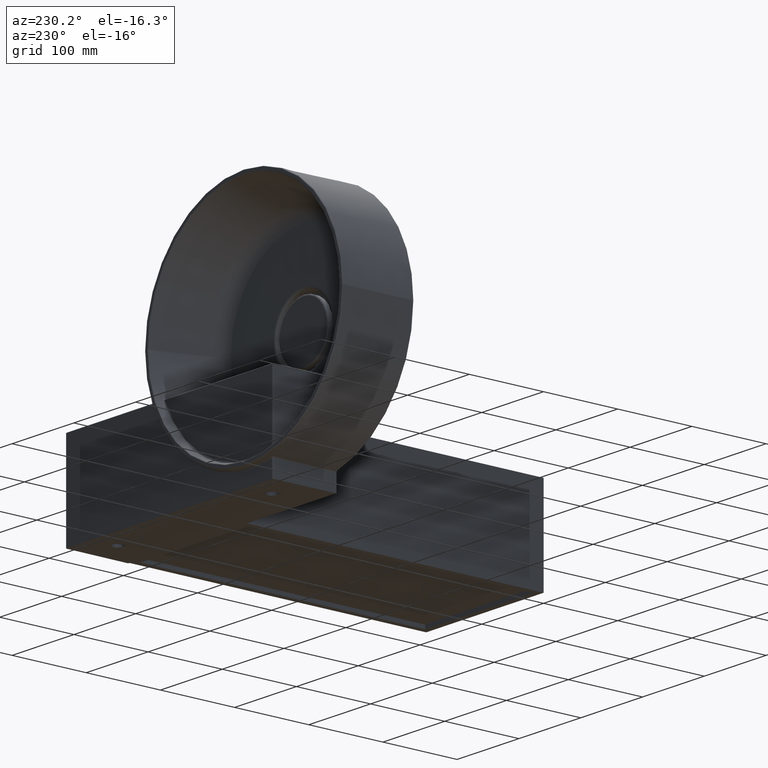
[diagram: clean part render]
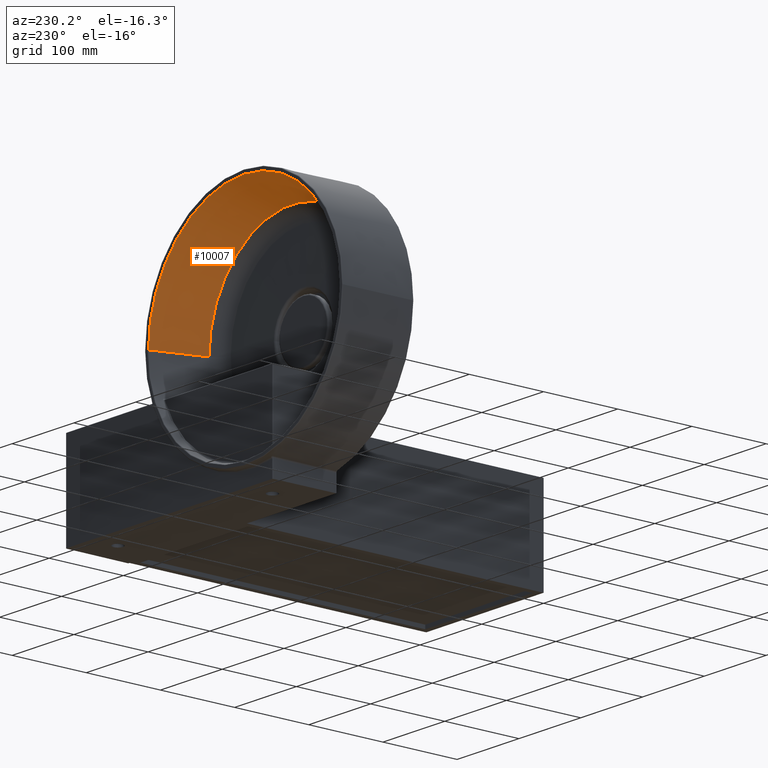
[diagram: same view with one face highlighted and labeled with its STEP entity id]
A machine part, auxiliary view. The second image highlights one B-rep face of the part: STEP entity #10007.
In plain terms, the highlighted conical surface has half-angle 17.5 deg.
Its self-contained STEP definition (entity closure, byte-faithful):
#420 = VECTOR ( 'NONE', #804, 1000.000000000000227 ) ;
#492 = ORIENTED_EDGE ( 'NONE', *, *, #3143, .T. ) ;
#804 = DIRECTION ( 'NONE',  ( 0.3007057995042739518, 0.9537169507482265995, 3.682583948479549965E-17 ) ) ;
#898 = CARTESIAN_POINT ( 'NONE',  ( 25.69210793720474939, 429.7999743637435586, 56.00000000000000711 ) ) ;
#968 = LINE ( 'NONE', #898, #420 ) ;
#1030 = VERTEX_POINT ( 'NONE', #4417 ) ;
#1236 = VERTEX_POINT ( 'NONE', #9693 ) ;
#2020 = VECTOR ( 'NONE', #7519, 1000.000000000000000 ) ;
#2310 = EDGE_CURVE ( 'NONE', #6648, #1030, #968, .T. ) ;
#2874 = EDGE_CURVE ( 'NONE', #1236, #6648, #10418, .T. ) ;
#3143 = EDGE_CURVE ( 'NONE', #1236, #6069, #8004, .T. ) ;
#3184 = EDGE_CURVE ( 'NONE', #6069, #1030, #10428, .T. ) ;
#3443 = CARTESIAN_POINT ( 'NONE',  ( 25.69210793720474939, 429.7999743637435586, 56.00000000000000711 ) ) ;
#3656 = CONICAL_SURFACE ( 'NONE', #10085, 134.4338916994192061, 0.3054326190990086509 ) ;
#3870 = CARTESIAN_POINT ( 'NONE',  ( -108.7417837622144674, 429.7999743637435586, 55.99999999999999289 ) ) ;
#3949 = AXIS2_PLACEMENT_3D ( 'NONE', #3870, #4023, #4058 ) ;
#3960 = AXIS2_PLACEMENT_3D ( 'NONE', #6968, #6954, #7040 ) ;
#4023 = DIRECTION ( 'NONE',  ( -1.214623636765614367E-16, 1.000000000000000000, -0.0000000000000000000 ) ) ;
#4058 = DIRECTION ( 'NONE',  ( -1.000000000000000000, 0.0000000000000000000, 0.0000000000000000000 ) ) ;
#4417 = CARTESIAN_POINT ( 'NONE',  ( 46.02907891082985969, 494.3006057995042397, 56.00000000000001421 ) ) ;
#4949 = DIRECTION ( 'NONE',  ( -1.000000000000000000, 0.0000000000000000000, 0.0000000000000000000 ) ) ;
#4964 = DIRECTION ( 'NONE',  ( -1.214623636765614367E-16, 1.000000000000000000, -0.0000000000000000000 ) ) ;
#5007 = CARTESIAN_POINT ( 'NONE',  ( -108.7417837622144674, 429.7999743637435586, 55.99999999999999289 ) ) ;
#5024 = FACE_OUTER_BOUND ( 'NONE', #5076, .T. ) ;
#5076 = EDGE_LOOP ( 'NONE', ( #8815, #5407, #492, #10495 ) ) ;
#5407 = ORIENTED_EDGE ( 'NONE', *, *, #2874, .F. ) ;
#6069 = VERTEX_POINT ( 'NONE', #8039 ) ;
#6648 = VERTEX_POINT ( 'NONE', #3443 ) ;
#6954 = DIRECTION ( 'NONE',  ( -1.214623636765614367E-16, 1.000000000000000000, -0.0000000000000000000 ) ) ;
#6968 = CARTESIAN_POINT ( 'NONE',  ( -108.7417837622144674, 494.3006057995042397, 55.99999999999999289 ) ) ;
#7040 = DIRECTION ( 'NONE',  ( -1.000000000000000000, 0.0000000000000000000, 0.0000000000000000000 ) ) ;
#7506 = CARTESIAN_POINT ( 'NONE',  ( -243.1756754616336877, 429.7999743637435586, 55.99999999999999289 ) ) ;
#7519 = DIRECTION ( 'NONE',  ( -0.3007057995042741738, 0.9537169507482265995, 0.0000000000000000000 ) ) ;
#8004 = LINE ( 'NONE', #7506, #2020 ) ;
#8039 = CARTESIAN_POINT ( 'NONE',  ( -263.5126464352587732, 494.3006057995042397, 55.99999999999999289 ) ) ;
#8815 = ORIENTED_EDGE ( 'NONE', *, *, #2310, .F. ) ;
#9693 = CARTESIAN_POINT ( 'NONE',  ( -243.1756754616336877, 429.7999743637435586, 55.99999999999999289 ) ) ;
#10007 = ADVANCED_FACE ( 'NONE', ( #5024 ), #3656, .F. ) ;
#10085 = AXIS2_PLACEMENT_3D ( 'NONE', #5007, #4964, #4949 ) ;
#10418 = CIRCLE ( 'NONE', #3949, 134.4338916994192061 ) ;
#10428 = CIRCLE ( 'NONE', #3960, 154.7708626730443200 ) ;
#10495 = ORIENTED_EDGE ( 'NONE', *, *, #3184, .T. ) ;